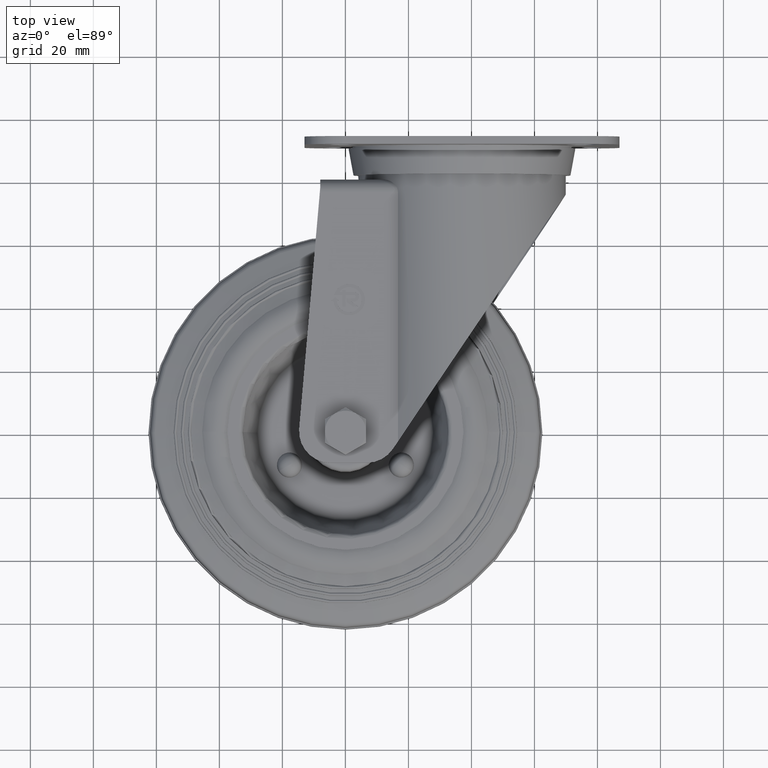
[diagram: clean part render]
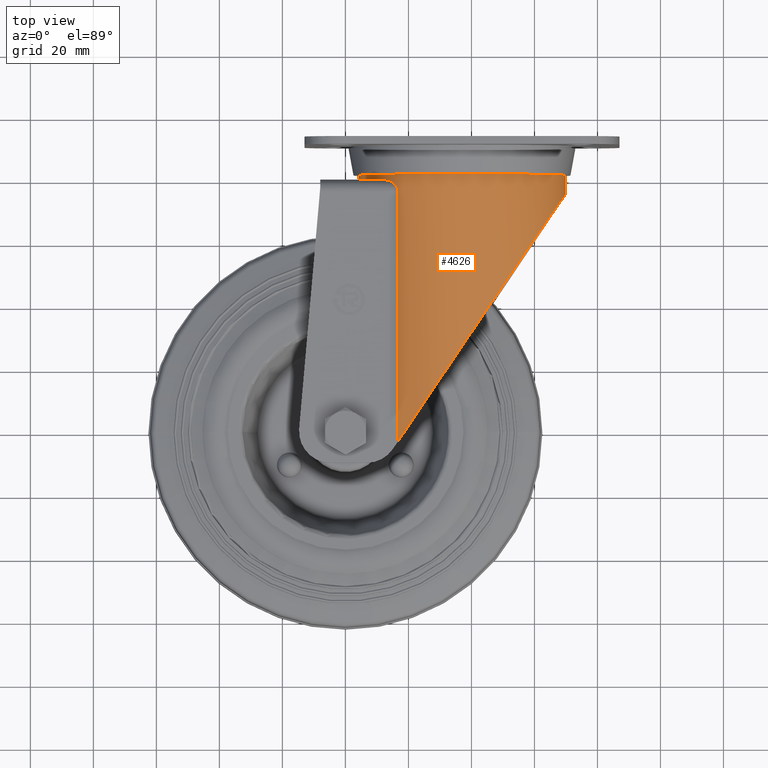
[diagram: same view with one face highlighted and labeled with its STEP entity id]
A machine part, top view. The second image highlights one B-rep face of the part: STEP entity #4626.
In plain terms, the highlighted cylindrical surface (bore or boss wall) has radius 33 mm, axis along (0, -1, 0).
Its self-contained STEP definition (entity closure, byte-faithful):
#67=B_SPLINE_CURVE_WITH_KNOTS('',3,(#7264,#7265,#7266,#7267,#7268,#7269,
#7270,#7271,#7272,#7273,#7274,#7275),.UNSPECIFIED.,.F.,.F.,(4,2,2,2,2,4),
(0.,0.0763231190500108,0.152646238100022,0.305292476200043,0.525532799635222,
0.7457731230704),.UNSPECIFIED.);
#68=B_SPLINE_CURVE_WITH_KNOTS('',3,(#7408,#7409,#7410,#7411,#7412,#7413,
#7414,#7415,#7416,#7417,#7418,#7419),.UNSPECIFIED.,.F.,.F.,(4,2,2,2,2,4),
(0.686651106759507,0.906891430194684,1.12713175362986,1.27977799172988,
1.35610111077989,1.43242422982991),.UNSPECIFIED.);
#77=ELLIPSE('',#5160,58.9644614028313,33.);
#78=ELLIPSE('',#5161,58.9644614028313,33.);
#178=CYLINDRICAL_SURFACE('',#5273,33.);
#464=CIRCLE('',#5260,33.);
#470=CIRCLE('',#5272,33.);
#667=FACE_OUTER_BOUND('',#978,.T.);
#978=EDGE_LOOP('',(#3619,#3620,#3621,#3622,#3623,#3624,#3625,#3626,#3627,
#3628));
#1187=LINE('',#7288,#1538);
#1209=LINE('',#7344,#1560);
#1314=LINE('',#7765,#1665);
#1538=VECTOR('',#5957,1000.);
#1560=VECTOR('',#5991,1000.);
#1665=VECTOR('',#6388,33.);
#1929=VERTEX_POINT('',#7261);
#1930=VERTEX_POINT('',#7263);
#1932=VERTEX_POINT('',#7279);
#1961=VERTEX_POINT('',#7340);
#1963=VERTEX_POINT('',#7343);
#1994=VERTEX_POINT('',#7407);
#2021=VERTEX_POINT('',#7509);
#2097=VERTEX_POINT('',#7762);
#2412=EDGE_CURVE('',#1930,#1929,#67,.T.);
#2419=EDGE_CURVE('',#1932,#1930,#1187,.T.);
#2446=EDGE_CURVE('',#1963,#1961,#1209,.F.);
#2478=EDGE_CURVE('',#1994,#1963,#68,.T.);
#2513=EDGE_CURVE('',#2021,#1932,#77,.T.);
#2514=EDGE_CURVE('',#1961,#2021,#78,.T.);
#2626=EDGE_CURVE('',#1929,#1994,#464,.T.);
#2637=EDGE_CURVE('',#2097,#2097,#470,.T.);
#2638=EDGE_CURVE('',#2021,#2097,#1314,.T.);
#3619=ORIENTED_EDGE('',*,*,#2446,.T.);
#3620=ORIENTED_EDGE('',*,*,#2514,.T.);
#3621=ORIENTED_EDGE('',*,*,#2638,.T.);
#3622=ORIENTED_EDGE('',*,*,#2637,.F.);
#3623=ORIENTED_EDGE('',*,*,#2638,.F.);
#3624=ORIENTED_EDGE('',*,*,#2513,.T.);
#3625=ORIENTED_EDGE('',*,*,#2419,.T.);
#3626=ORIENTED_EDGE('',*,*,#2412,.T.);
#3627=ORIENTED_EDGE('',*,*,#2626,.T.);
#3628=ORIENTED_EDGE('',*,*,#2478,.T.);
#4626=ADVANCED_FACE('',(#667),#178,.T.);
#5160=AXIS2_PLACEMENT_3D('',#7510,#6095,#6096);
#5161=AXIS2_PLACEMENT_3D('',#7511,#6097,#6098);
#5260=AXIS2_PLACEMENT_3D('',#7739,#6355,#6356);
#5272=AXIS2_PLACEMENT_3D('',#7763,#6384,#6385);
#5273=AXIS2_PLACEMENT_3D('',#7764,#6386,#6387);
#5957=DIRECTION('',(0.,1.,0.));
#5991=DIRECTION('',(0.,1.,0.));
#6095=DIRECTION('center_axis',(-0.828722898467716,0.559659144082599,0.));
#6096=DIRECTION('ref_axis',(0.559659144082599,0.828722898467716,0.));
#6097=DIRECTION('center_axis',(-0.828722898467716,0.559659144082599,0.));
#6098=DIRECTION('ref_axis',(0.559659144082599,0.828722898467716,0.));
#6355=DIRECTION('center_axis',(0.,1.,0.));
#6356=DIRECTION('ref_axis',(0.,0.,1.));
#6384=DIRECTION('center_axis',(0.,1.,0.));
#6385=DIRECTION('ref_axis',(0.,0.,1.));
#6386=DIRECTION('center_axis',(0.,-1.,0.));
#6387=DIRECTION('ref_axis',(0.,0.,1.));
#6388=DIRECTION('',(0.,1.,0.));
#7261=CARTESIAN_POINT('',(12.4032522475023,80.,-22.));
#7263=CARTESIAN_POINT('',(16.6775985670984,76.,-26.));
#7264=CARTESIAN_POINT('Ctrl Pts',(16.6775985670984,76.,-26.));
#7265=CARTESIAN_POINT('Ctrl Pts',(16.6775985670984,76.2544103968334,-26.));
#7266=CARTESIAN_POINT('Ctrl Pts',(16.6460162489905,76.5094771867627,-25.9753973722688));
#7267=CARTESIAN_POINT('Ctrl Pts',(16.525079307864,77.0037828882051,-25.8801766962197));
#7268=CARTESIAN_POINT('Ctrl Pts',(16.4358566915416,77.2430641889054,-25.8096110968492));
#7269=CARTESIAN_POINT('Ctrl Pts',(16.1050493349239,77.9171606915302,-25.5437095615273));
#7270=CARTESIAN_POINT('Ctrl Pts',(15.7987510450551,78.3083483790929,-25.2917381097589));
#7271=CARTESIAN_POINT('Ctrl Pts',(15.0462744130148,79.0570014704085,-24.6450271163274));
#7272=CARTESIAN_POINT('Ctrl Pts',(14.5168021146939,79.4106242306133,-24.1675509277513));
#7273=CARTESIAN_POINT('Ctrl Pts',(13.4400016913488,79.8830821713636,-23.1190654054646));
#7274=CARTESIAN_POINT('Ctrl Pts',(12.8926751884694,80.,-22.5471914828751));
#7275=CARTESIAN_POINT('Ctrl Pts',(12.4032522475023,80.,-22.));
#7279=CARTESIAN_POINT('',(16.6775985670984,-3.19825669612718,-26.));
#7288=CARTESIAN_POINT('',(16.6775985670984,93.4999999999998,-26.));
#7340=CARTESIAN_POINT('',(16.6775985670984,-3.19825669612718,26.));
#7343=CARTESIAN_POINT('',(16.6775985670984,76.,26.));
#7344=CARTESIAN_POINT('',(16.6775985670984,93.4999999999998,26.));
#7407=CARTESIAN_POINT('',(12.4032522475023,80.,22.));
#7408=CARTESIAN_POINT('Ctrl Pts',(12.4032522475023,80.,22.));
#7409=CARTESIAN_POINT('Ctrl Pts',(12.8926751884694,80.,22.5471914828751));
#7410=CARTESIAN_POINT('Ctrl Pts',(13.4400016913488,79.8830821713636,23.1190654054646));
#7411=CARTESIAN_POINT('Ctrl Pts',(14.5168021146939,79.4106242306133,24.1675509277513));
#7412=CARTESIAN_POINT('Ctrl Pts',(15.0462744130148,79.0570014704085,24.6450271163274));
#7413=CARTESIAN_POINT('Ctrl Pts',(15.798751045055,78.3083483790929,25.2917381097589));
#7414=CARTESIAN_POINT('Ctrl Pts',(16.1050493349239,77.9171606915302,25.5437095615272));
#7415=CARTESIAN_POINT('Ctrl Pts',(16.4358566915416,77.2430641889054,25.8096110968492));
#7416=CARTESIAN_POINT('Ctrl Pts',(16.525079307864,77.0037828882051,25.8801766962197));
#7417=CARTESIAN_POINT('Ctrl Pts',(16.6460162489905,76.5094771867627,25.9753973722688));
#7418=CARTESIAN_POINT('Ctrl Pts',(16.6775985670984,76.2544103968334,26.));
#7419=CARTESIAN_POINT('Ctrl Pts',(16.6775985670984,76.,26.));
#7509=CARTESIAN_POINT('',(37.,26.894415955377,-33.));
#7510=CARTESIAN_POINT('Origin',(37.,26.894415955377,0.));
#7511=CARTESIAN_POINT('Origin',(37.,26.894415955377,0.));
#7739=CARTESIAN_POINT('Origin',(37.,80.,0.));
#7762=CARTESIAN_POINT('',(37.,81.6999999999997,-33.));
#7763=CARTESIAN_POINT('Origin',(37.,81.6999999999997,0.));
#7764=CARTESIAN_POINT('Origin',(37.,93.4999999999998,0.));
#7765=CARTESIAN_POINT('',(37.,93.4999999999998,-33.));